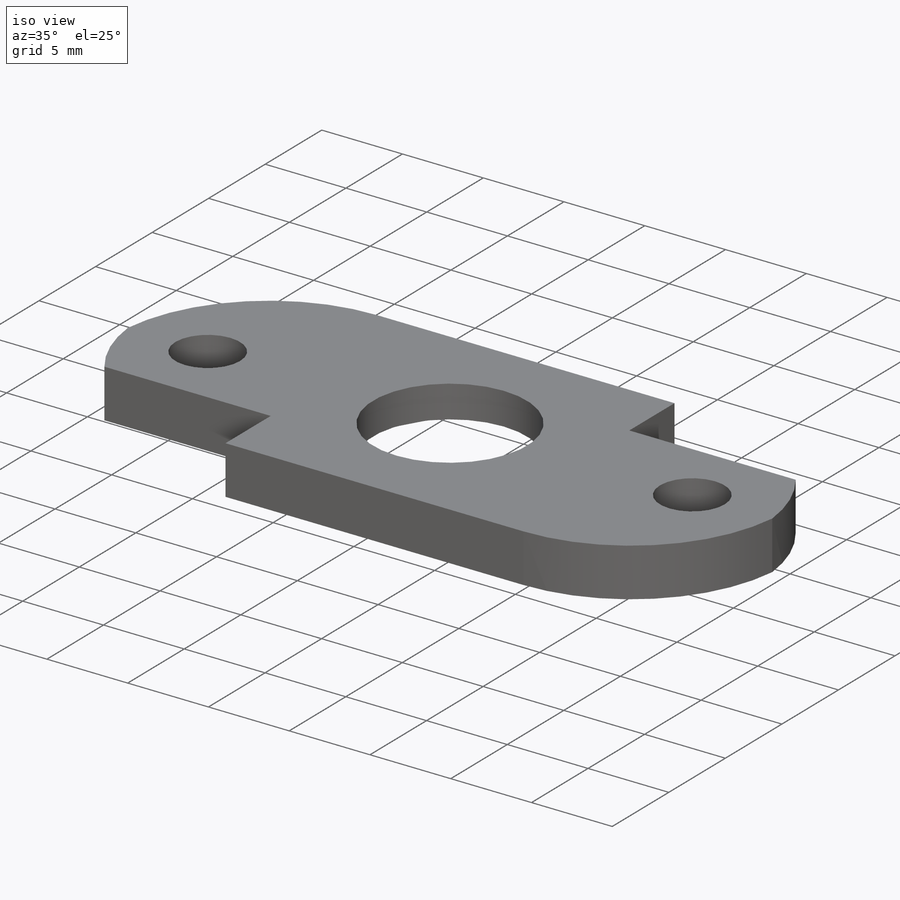
[diagram: iso view]
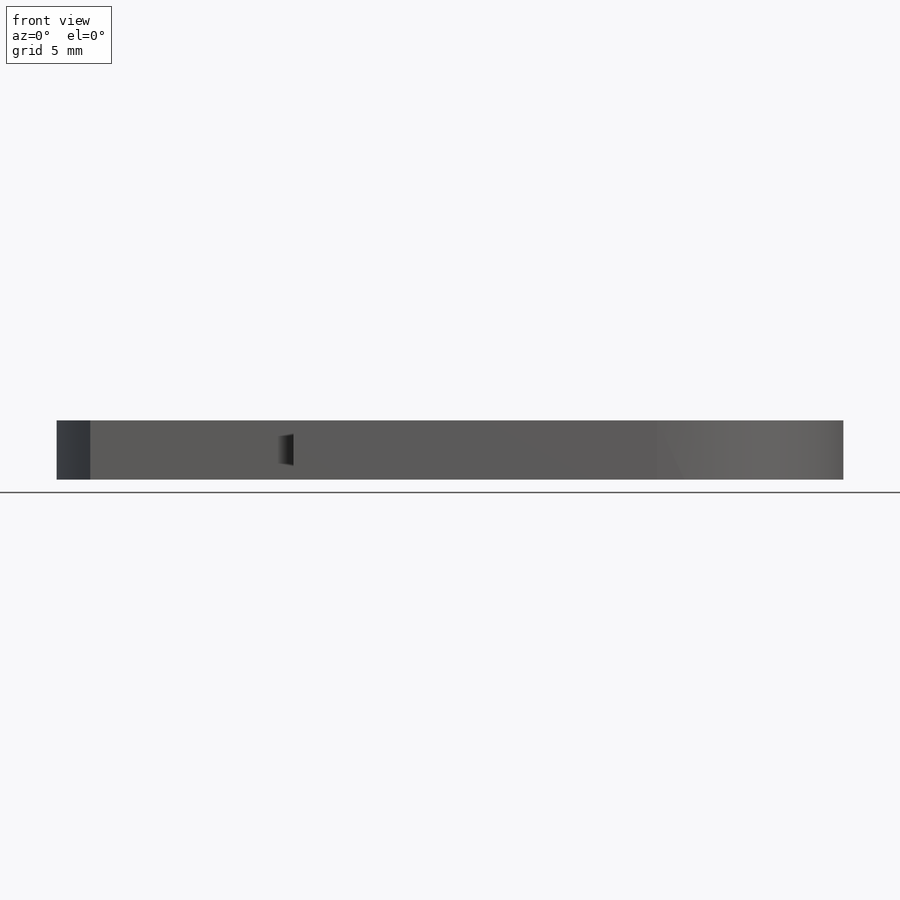
[diagram: front view]
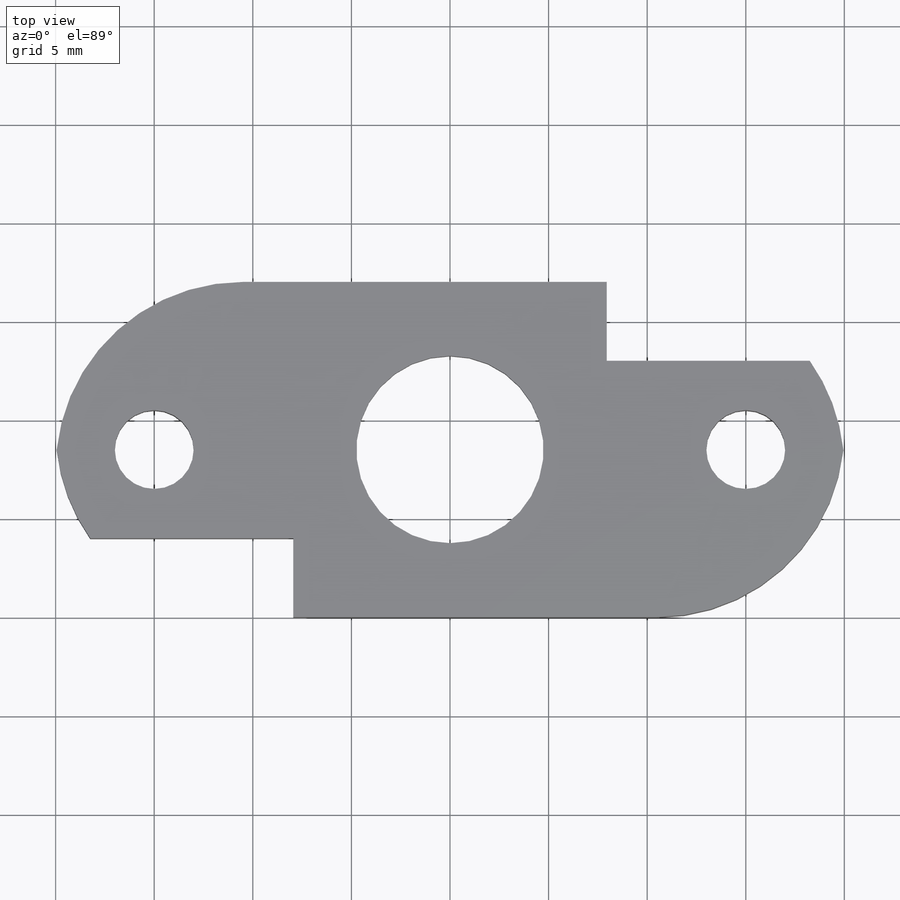
[diagram: top view]
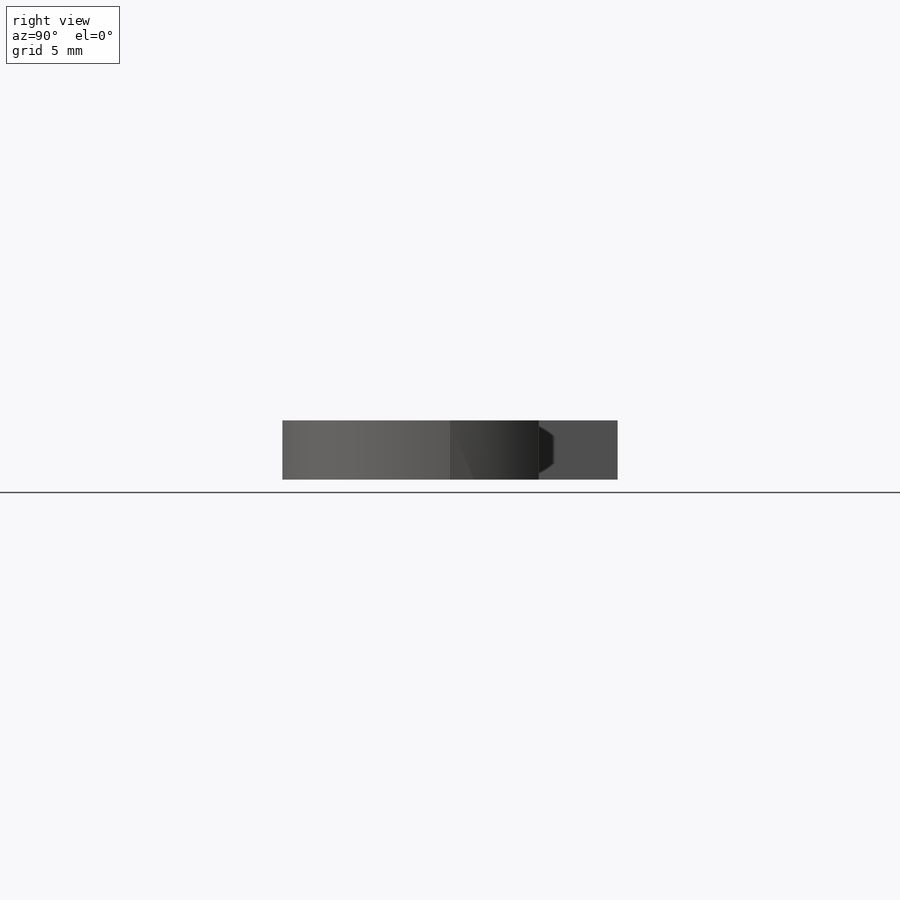
[diagram: right view]
SOLIDWORKS PART (.sldprt)
format: sldprt  version: not decoded by parser v0  size: 227,328 bytes
history: native  units: mm
features: sketch x4, cut_extrude x3, material x1, extrude x1, fillet x1 (+12 scaffold rows collapsed)
feature tree (22):
  scaffold x12  (default folders/planes/origin — collapsed)
  material  "ABS PC"
  sketch  "Sketch1"  dims[D1=17.0mm D2=40.0mm]
  extrude  "Boss-Extrude1"  Depth=3mm
  sketch  "Sketch2"  dims[c1.D1=9.5mm c1.D4=4.0mm c1.D5=9.0mm c1.D6=4.0mm c1.D7=9.0mm c1.D8=4.0mm c1.D2=20.0mm c1.D3=8.5mm c2.D5=15.0mm c2.D6=8.5mm c2.D7=8.5mm c2.D8=15.0mm]
  cut_extrude  "Cut-Extrude1"  [1 undecoded]
  sketch  "Sketch3"  dims[D1=15.3mm]
  cut_extrude  "Cut-Extrude2"  Depth=1mm
  fillet  "Fillet1"  Radius=9.5mm
  sketch  "Sketch4"  dims[c1.D1=~7.35399mm c1.D2=~11.015121mm c2.D1=~5.22595mm c2.D2=~12.514176mm c3.D1=12.0mm c3.D2=4.0mm]
  cut_extrude  "Cut-Extrude3"  [1 undecoded]
decode coverage: 7 of 9 modeling features carry decoded parameters
note: ~ marks probable driven/reference dimensions
note: 2 parameter values undecoded
note: suppression state not decoded; provenance and decode notes live in map.json
